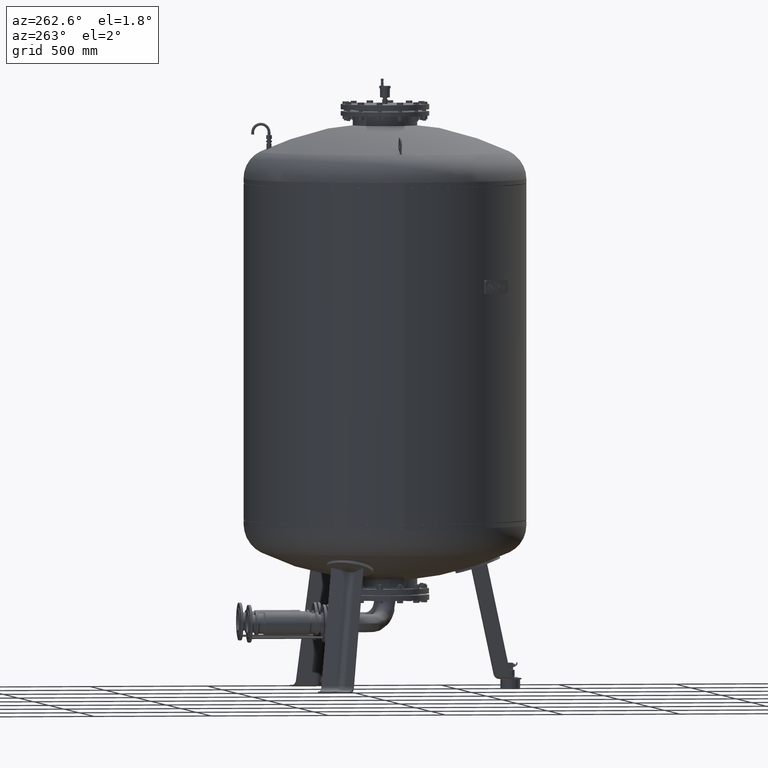
[diagram: clean part render]
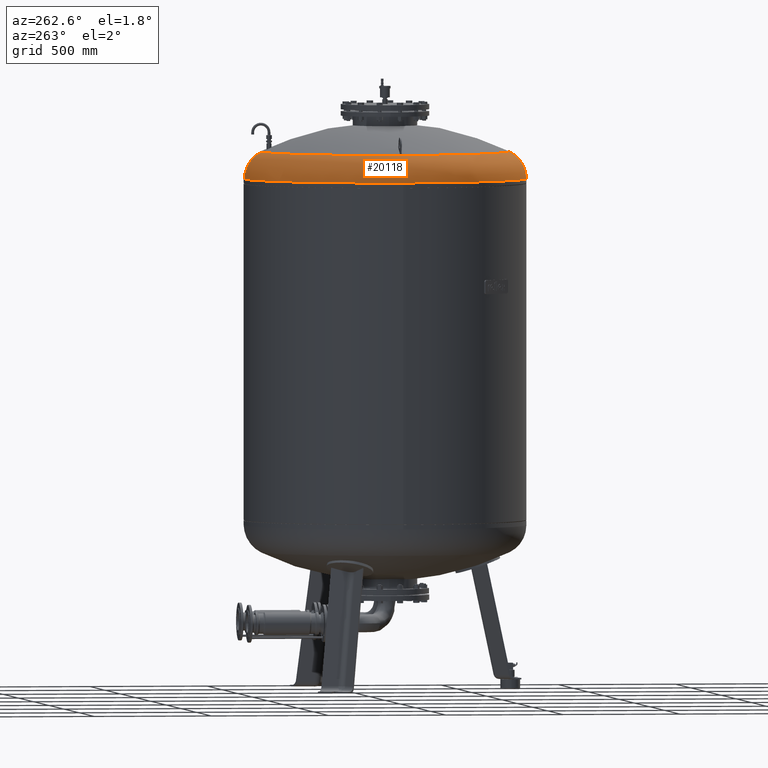
[diagram: same view with one face highlighted and labeled with its STEP entity id]
A machine part, auxiliary view. The second image highlights one B-rep face of the part: STEP entity #20118.
In plain terms, the highlighted toroidal blend (fillet) surface has major radius 473 mm and minor (blend) radius 127 mm.
Its self-contained STEP definition (entity closure, byte-faithful):
#19357=CARTESIAN_POINT('',(-599.999999999999890,3.010780E-014,2163.912457433727500));
#19358=VERTEX_POINT('',#19357);
#19365=CARTESIAN_POINT('',(1.156183E-013,600.0,2163.912457433727500));
#19366=VERTEX_POINT('',#19365);
#19367=CARTESIAN_POINT('',(6.604942E-015,-4.336858E-014,2163.912457433727500));
#19368=DIRECTION('',(0.0,0.0,-1.0));
#19369=DIRECTION('',(1.0,0.0,0.0));
#19370=AXIS2_PLACEMENT_3D('',#19367,#19368,#19369);
#19371=CIRCLE('',#19370,600.0);
#19372=EDGE_CURVE('',#19358,#19366,#19371,.T.);
#19389=CARTESIAN_POINT('',(4.214189E-014,-600.0,2163.912457433727500));
#19390=VERTEX_POINT('',#19389);
#19391=CARTESIAN_POINT('',(3.894773E-014,-528.621296296296240,2278.084570483804800));
#19392=VERTEX_POINT('',#19391);
#19393=CARTESIAN_POINT('',(4.214189E-014,-472.999999999999940,2163.912457433727500));
#19394=DIRECTION('',(-1.0,0.0,0.0));
#19395=DIRECTION('',(0.0,-1.0,0.0));
#19396=AXIS2_PLACEMENT_3D('',#19393,#19394,#19395);
#19397=CIRCLE('',#19396,127.000000000000010);
#19398=EDGE_CURVE('',#19390,#19392,#19397,.T.);
#19408=CARTESIAN_POINT('',(1.036830E-013,528.621296296296240,2278.084570483804800));
#19409=VERTEX_POINT('',#19408);
#19410=CARTESIAN_POINT('',(1.000658E-013,472.999999999999830,2163.912457433727500));
#19411=DIRECTION('',(1.0,0.0,0.0));
#19412=DIRECTION('',(0.0,1.0,0.0));
#19413=AXIS2_PLACEMENT_3D('',#19410,#19411,#19412);
#19414=CIRCLE('',#19413,127.000000000000010);
#19415=EDGE_CURVE('',#19366,#19409,#19414,.T.);
#20090=CARTESIAN_POINT('',(3.410787E-015,-2.239550E-014,2278.084570483804800));
#20091=DIRECTION('',(0.0,0.0,-1.0));
#20092=DIRECTION('',(1.0,0.0,0.0));
#20093=AXIS2_PLACEMENT_3D('',#20090,#20091,#20092);
#20094=CIRCLE('',#20093,528.621296296296240);
#20095=EDGE_CURVE('',#19392,#19409,#20094,.T.);
#20100=CARTESIAN_POINT('',(4.214189E-014,-4.336858E-014,2163.912457433727500));
#20101=DIRECTION('',(2.797667E-017,-1.836970E-016,-1.0));
#20102=DIRECTION('',(0.0,-1.0,0.0));
#20103=AXIS2_PLACEMENT_3D('',#20100,#20101,#20102);
#20104=TOROIDAL_SURFACE('',#20103,472.999999999999890,127.000000000000010);
#20105=ORIENTED_EDGE('',*,*,#19398,.T.);
#20106=ORIENTED_EDGE('',*,*,#20095,.T.);
#20107=ORIENTED_EDGE('',*,*,#19415,.F.);
#20108=ORIENTED_EDGE('',*,*,#19372,.F.);
#20109=CARTESIAN_POINT('',(6.604942E-015,-4.336858E-014,2163.912457433727500));
#20110=DIRECTION('',(0.0,0.0,-1.0));
#20111=DIRECTION('',(1.0,0.0,0.0));
#20112=AXIS2_PLACEMENT_3D('',#20109,#20110,#20111);
#20113=CIRCLE('',#20112,600.0);
#20114=EDGE_CURVE('',#19390,#19358,#20113,.T.);
#20115=ORIENTED_EDGE('',*,*,#20114,.F.);
#20116=EDGE_LOOP('',(#20105,#20106,#20107,#20108,#20115));
#20117=FACE_OUTER_BOUND('',#20116,.T.);
#20118=ADVANCED_FACE('',(#20117),#20104,.T.);